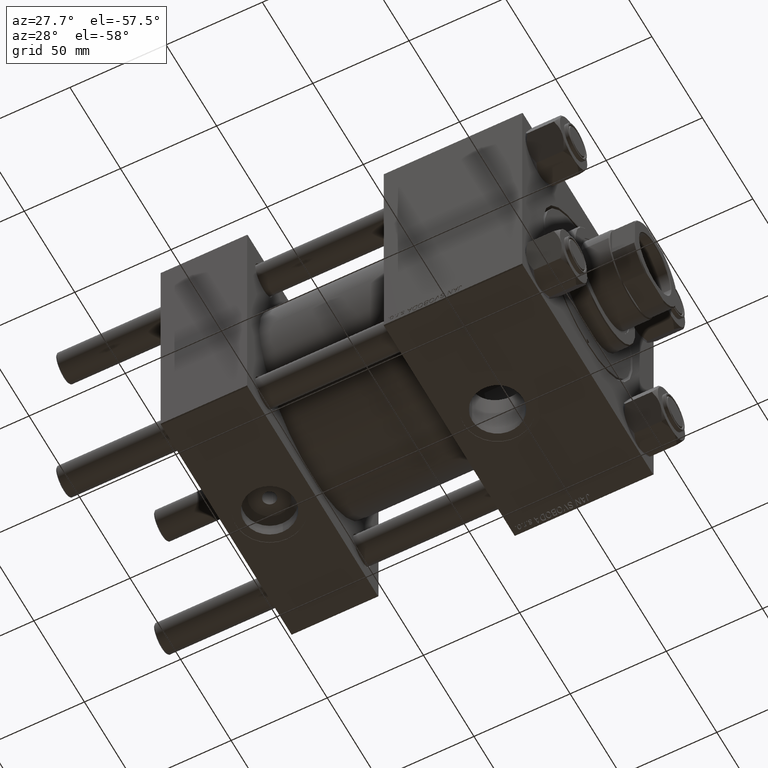
[diagram: clean part render]
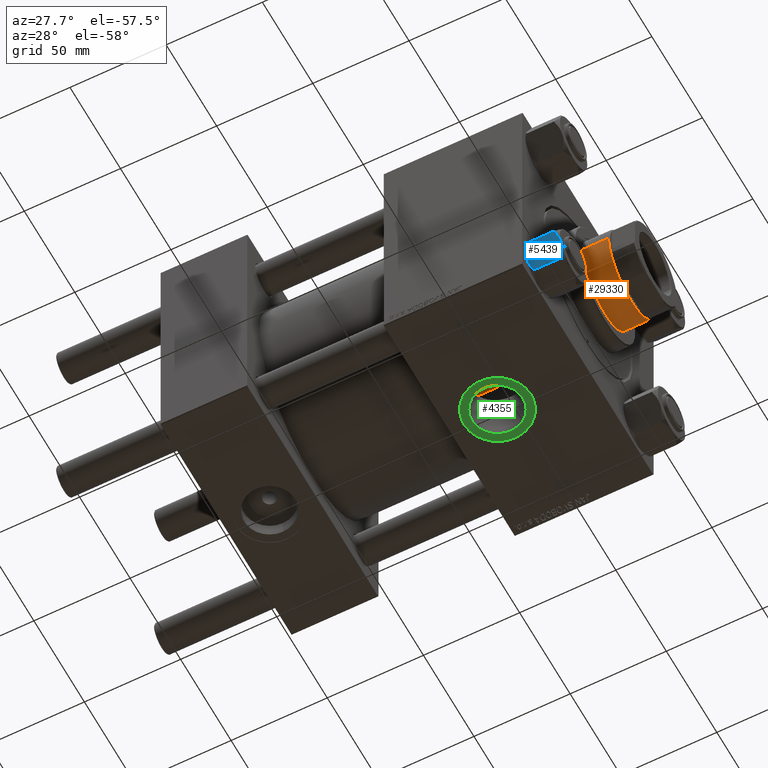
[diagram: same view with three faces highlighted in distinct colors, each labeled with its STEP entity id]
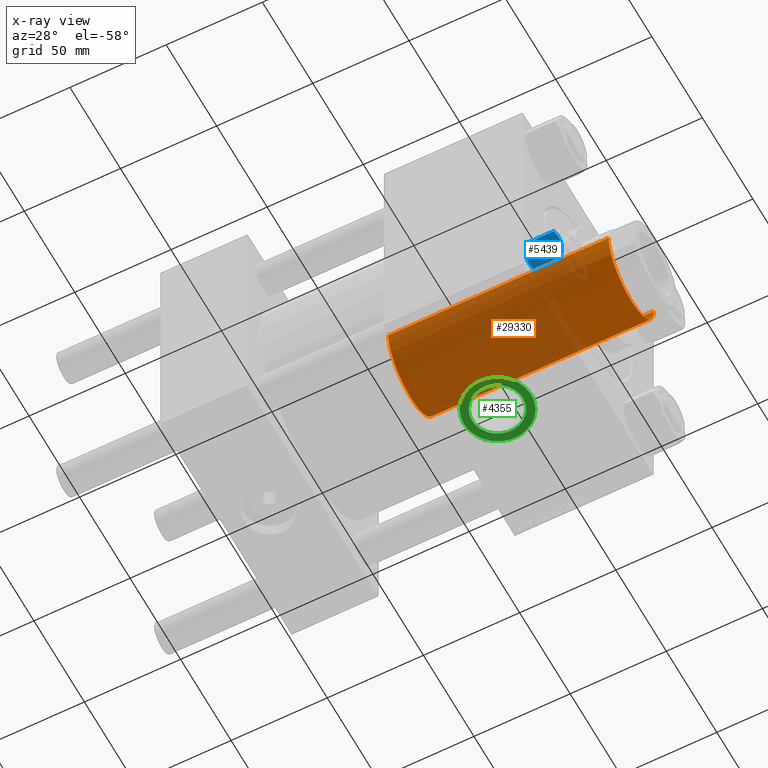
[diagram: x-ray of the same camera — body ghosted, the three highlighted faces saturated]
A machine part, auxiliary view with three faces highlighted in distinct colors.
The next image is the same camera in x-ray (body ghosted, the three faces saturated) — at least one of them is partly hidden behind the body in this view.
Their STEP definitions:

[orange] entity #29330 — the highlighted cylindrical surface (partial cylindrical patch) has radius 22.5 mm, axis along (-1, 0, 0).
#1768 = ORIENTED_EDGE ( 'NONE', *, *, #6244, .T. ) ;
#2637 = ORIENTED_EDGE ( 'NONE', *, *, #27018, .F. ) ;
#2830 = AXIS2_PLACEMENT_3D ( 'NONE', #15520, #30587, #22915 ) ;
#4020 = DIRECTION ( 'NONE',  ( -0.000000000000000000, -0.000000000000000000, -1.000000000000000000 ) ) ;
#5963 = DIRECTION ( 'NONE',  ( 1.000000000000000000, 0.000000000000000000, 0.000000000000000000 ) ) ;
#6213 = DIRECTION ( 'NONE',  ( 0.000000000000000000, 0.000000000000000000, -1.000000000000000000 ) ) ;
#6244 = EDGE_CURVE ( 'NONE', #12100, #17182, #39338, .T. ) ;
#6733 = AXIS2_PLACEMENT_3D ( 'NONE', #49590, #6213, #5963 ) ;
#12100 = VERTEX_POINT ( 'NONE', #40059 ) ;
#12395 = EDGE_CURVE ( 'NONE', #17182, #36912, #35675, .T. ) ;
#13320 = LINE ( 'NONE', #20963, #45439 ) ;
#13419 = CIRCLE ( 'NONE', #2830, 22.50000000000000355 ) ;
#15480 = CYLINDRICAL_SURFACE ( 'NONE', #23498, 22.50000000000000355 ) ;
#15520 = CARTESIAN_POINT ( 'NONE',  ( 0.000000000000000000, 0.000000000000000000, 51.00000000000000000 ) ) ;
#16280 = DIRECTION ( 'NONE',  ( -0.000000000000000000, -0.000000000000000000, -1.000000000000000000 ) ) ;
#17182 = VERTEX_POINT ( 'NONE', #38653 ) ;
#19000 = VECTOR ( 'NONE', #16280, 1000.000000000000000 ) ;
#20963 = CARTESIAN_POINT ( 'NONE',  ( -22.50000000000000355, 0.000000000000000000, 166.0000000000000000 ) ) ;
#21276 = ORIENTED_EDGE ( 'NONE', *, *, #44335, .T. ) ;
#22069 = ORIENTED_EDGE ( 'NONE', *, *, #12395, .T. ) ;
#22915 = DIRECTION ( 'NONE',  ( 1.000000000000000000, 0.000000000000000000, 0.000000000000000000 ) ) ;
#23123 = CARTESIAN_POINT ( 'NONE',  ( 0.000000000000000000, 0.000000000000000000, 166.0000000000000000 ) ) ;
#23498 = AXIS2_PLACEMENT_3D ( 'NONE', #23123, #4020, #37948 ) ;
#23913 = CARTESIAN_POINT ( 'NONE',  ( 22.50000000000000355, 2.755455298081545172E-15, 166.0000000000000000 ) ) ;
#27018 = EDGE_CURVE ( 'NONE', #12100, #31819, #13320, .T. ) ;
#29330 = ADVANCED_FACE ( 'NONE', ( #35122 ), #15480, .T. ) ;
#30587 = DIRECTION ( 'NONE',  ( 0.000000000000000000, 0.000000000000000000, 1.000000000000000000 ) ) ;
#31388 = EDGE_LOOP ( 'NONE', ( #1768, #22069, #21276, #2637 ) ) ;
#31819 = VERTEX_POINT ( 'NONE', #46110 ) ;
#35122 = FACE_OUTER_BOUND ( 'NONE', #31388, .T. ) ;
#35675 = LINE ( 'NONE', #23913, #19000 ) ;
#36912 = VERTEX_POINT ( 'NONE', #39432 ) ;
#37948 = DIRECTION ( 'NONE',  ( -1.000000000000000000, 0.000000000000000000, 0.000000000000000000 ) ) ;
#38653 = CARTESIAN_POINT ( 'NONE',  ( 22.50000000000000355, 2.755455298081545172E-15, 165.4999999999999716 ) ) ;
#39338 = CIRCLE ( 'NONE', #6733, 22.50000000000000355 ) ;
#39432 = CARTESIAN_POINT ( 'NONE',  ( 22.50000000000000355, 2.755455298081545172E-15, 51.00000000000000000 ) ) ;
#40059 = CARTESIAN_POINT ( 'NONE',  ( -22.50000000000000355, 0.000000000000000000, 165.4999999999999716 ) ) ;
#44335 = EDGE_CURVE ( 'NONE', #36912, #31819, #13419, .T. ) ;
#44702 = DIRECTION ( 'NONE',  ( -0.000000000000000000, -0.000000000000000000, -1.000000000000000000 ) ) ;
#45439 = VECTOR ( 'NONE', #44702, 1000.000000000000000 ) ;
#46110 = CARTESIAN_POINT ( 'NONE',  ( -22.50000000000000355, 0.000000000000000000, 51.00000000000000000 ) ) ;
#49590 = CARTESIAN_POINT ( 'NONE',  ( 0.000000000000000000, 0.000000000000000000, 165.4999999999999716 ) ) ;

[blue] entity #5439 — the highlighted planar face has unit normal (-0, 0.9104, 0.4137).
#192 = EDGE_CURVE ( 'NONE', #7219, #49296, #11376, .T. ) ;
#323 = CARTESIAN_POINT ( 'NONE',  ( 6.422751913021809145, 13.52731680711294260, -16.56349088907410660 ) ) ;
#573 = CARTESIAN_POINT ( 'NONE',  ( 4.557734399832405359, 13.52731680711293905, -17.26585298258848411 ) ) ;
#710 = CARTESIAN_POINT ( 'NONE',  ( 6.427364677720460051, 13.52731680711294082, -1.438506937155139553 ) ) ;
#825 = CARTESIAN_POINT ( 'NONE',  ( 2.644243758052981175, 13.52731680711294260, -17.75917188019758797 ) ) ;
#901 = DIRECTION ( 'NONE',  ( 1.000000000000000000, 3.331735229148797044E-16, 0.000000000000000000 ) ) ;
#1019 = CARTESIAN_POINT ( 'NONE',  ( -7.810000000000002274, 13.52731680711293549, -18.00000000000000000 ) ) ;
#1217 = CARTESIAN_POINT ( 'NONE',  ( 5.189513245496318206, 13.52731680711294260, -0.9501108431732598891 ) ) ;
#1478 = CARTESIAN_POINT ( 'NONE',  ( -7.622943475354639453, 13.52731680711293727, -16.00000000000000000 ) ) ;
#2413 = CARTESIAN_POINT ( 'NONE',  ( 7.030888348548049116, 13.52731680711294260, -1.709337883550296810 ) ) ;
#3431 = VERTEX_POINT ( 'NONE', #46425 ) ;
#3730 = CARTESIAN_POINT ( 'NONE',  ( -7.810000000000002274, 13.52731680711293549, -16.00000000000000000 ) ) ;
#4836 = CARTESIAN_POINT ( 'NONE',  ( -7.030203932307578896, 13.52731680711293727, -1.709001877891394239 ) ) ;
#4906 = CARTESIAN_POINT ( 'NONE',  ( 7.030203932307570902, 13.52731680711294260, -16.29099812210859710 ) ) ;
#5163 = ORIENTED_EDGE ( 'NONE', *, *, #23436, .F. ) ;
#5208 = EDGE_CURVE ( 'NONE', #30845, #33318, #41017, .T. ) ;
#5439 = ADVANCED_FACE ( 'NONE', ( #35968 ), #24205, .F. ) ;
#5758 = EDGE_LOOP ( 'NONE', ( #9106, #6622, #39310, #26204, #11790, #5163, #50349, #13060, #20486, #32693 ) ) ;
#5974 = EDGE_CURVE ( 'NONE', #7219, #39109, #17501, .T. ) ;
#6344 = VECTOR ( 'NONE', #901, 1000.000000000000000 ) ;
#6622 = ORIENTED_EDGE ( 'NONE', *, *, #5974, .T. ) ;
#6748 = EDGE_CURVE ( 'NONE', #45486, #46559, #14746, .T. ) ;
#7219 = VERTEX_POINT ( 'NONE', #20265 ) ;
#7681 = EDGE_CURVE ( 'NONE', #20023, #39109, #20206, .T. ) ;
#9106 = ORIENTED_EDGE ( 'NONE', *, *, #192, .F. ) ;
#9222 = VECTOR ( 'NONE', #40370, 1000.000000000000000 ) ;
#9665 = CARTESIAN_POINT ( 'NONE',  ( -1.663410456966178064, 13.52731680711294082, -0.09804949135699474183 ) ) ;
#9911 = CARTESIAN_POINT ( 'NONE',  ( -3.287826776903154613, 13.52731680711293549, -0.3804584453753406814 ) ) ;
#11203 = DIRECTION ( 'NONE',  ( 1.000000000000000000, 3.331735229148797044E-16, 0.000000000000000000 ) ) ;
#11285 = CARTESIAN_POINT ( 'NONE',  ( 7.809999999999994280, 13.52731680711294082, -1.999999999999998224 ) ) ;
#11376 = LINE ( 'NONE', #3730, #6344 ) ;
#11790 = ORIENTED_EDGE ( 'NONE', *, *, #48332, .F. ) ;
#12731 = CARTESIAN_POINT ( 'NONE',  ( -1.333889873825136130, 13.52731680711293549, -0.06156641003439738274 ) ) ;
#13060 = ORIENTED_EDGE ( 'NONE', *, *, #44330, .F. ) ;
#13181 = CARTESIAN_POINT ( 'NONE',  ( -7.810000000000002274, 13.52731680711293549, -18.00000000000000000 ) ) ;
#14210 = VECTOR ( 'NONE', #11203, 1000.000000000000000 ) ;
#14746 = LINE ( 'NONE', #46384, #27924 ) ;
#16262 = CARTESIAN_POINT ( 'NONE',  ( 7.622943475354630571, 13.52731680711294082, -2.000000000000000000 ) ) ;
#16688 = VERTEX_POINT ( 'NONE', #29904 ) ;
#17301 = CARTESIAN_POINT ( 'NONE',  ( -4.557734399832410688, 13.52731680711293549, -0.7341470174115168890 ) ) ;
#17501 = LINE ( 'NONE', #13181, #24641 ) ;
#18708 = LINE ( 'NONE', #19460, #27519 ) ;
#19219 = CARTESIAN_POINT ( 'NONE',  ( -1.335584685993417065, 13.52731680711293549, -17.99999999999999289 ) ) ;
#19460 = CARTESIAN_POINT ( 'NONE',  ( -7.810000000000002274, 13.52731680711293549, -1.999999999999998224 ) ) ;
#19625 = B_SPLINE_CURVE_WITH_KNOTS ( 'NONE', 3,
 ( #20626, #47699, #44865, #12731, #9665, #36705, #9911, #17301, #20877, #24697, #4836, #44112 ),
 .UNSPECIFIED., .F., .F.,
 ( 4, 2, 2, 2, 2, 4 ),
 ( 0.02774433486126545376, 0.02873404020403548878, 0.02972374554680552727, 0.03170315623234559732, 0.03368256691788567431, 0.03566197760342574435 ),
 .UNSPECIFIED. ) ;
#19710 = CARTESIAN_POINT ( 'NONE',  ( -7.622943475354639453, 13.52731680711293727, -16.00000000000000000 ) ) ;
#20023 = VERTEX_POINT ( 'NONE', #44337 ) ;
#20197 = CARTESIAN_POINT ( 'NONE',  ( 0.3330234424833778406, 13.52731680711293905, -17.99999999999999645 ) ) ;
#20206 = LINE ( 'NONE', #24781, #9222 ) ;
#20265 = CARTESIAN_POINT ( 'NONE',  ( -7.810000000000002274, 13.52731680711293549, -16.00000000000000000 ) ) ;
#20486 = ORIENTED_EDGE ( 'NONE', *, *, #5208, .F. ) ;
#20626 = CARTESIAN_POINT ( 'NONE',  ( -4.506943796211480446E-15, 13.52731680711293905, 0.000000000000000000 ) ) ;
#20877 = CARTESIAN_POINT ( 'NONE',  ( -5.184073258379398474, 13.52731680711293372, -0.9481437906500842505 ) ) ;
#23436 = EDGE_CURVE ( 'NONE', #46559, #16688, #18708, .T. ) ;
#23519 = CARTESIAN_POINT ( 'NONE',  ( 7.622943475354630571, 13.52731680711294082, -16.00000000000000000 ) ) ;
#24190 = EDGE_CURVE ( 'NONE', #49296, #30845, #45196, .T. ) ;
#24205 = PLANE ( 'NONE',  #34050 ) ;
#24641 = VECTOR ( 'NONE', #40975, 1000.000000000000000 ) ;
#24697 = CARTESIAN_POINT ( 'NONE',  ( -6.422751913021819803, 13.52731680711293905, -1.436509110925896504 ) ) ;
#24781 = CARTESIAN_POINT ( 'NONE',  ( -7.810000000000002274, 13.52731680711293549, -1.999999999999998224 ) ) ;
#26204 = ORIENTED_EDGE ( 'NONE', *, *, #32521, .F. ) ;
#26874 = CARTESIAN_POINT ( 'NONE',  ( -4.553769687922305742, 13.52731680711293727, -17.26727080048547691 ) ) ;
#27519 = VECTOR ( 'NONE', #34277, 1000.000000000000000 ) ;
#27801 = CARTESIAN_POINT ( 'NONE',  ( -7.810000000000002274, 13.52731680711293549, -1.999999999999998224 ) ) ;
#27924 = VECTOR ( 'NONE', #30302, 1000.000000000000000 ) ;
#28042 = DIRECTION ( 'NONE',  ( 1.000000000000000000, 3.331735229148797044E-16, 0.000000000000000000 ) ) ;
#28358 = CARTESIAN_POINT ( 'NONE',  ( -4.506943796211480446E-15, 13.52731680711293905, -18.00000000000000000 ) ) ;
#29904 = CARTESIAN_POINT ( 'NONE',  ( 7.622943475354630571, 13.52731680711294082, -2.000000000000000000 ) ) ;
#30302 = DIRECTION ( 'NONE',  ( -0.000000000000000000, -0.000000000000000000, 1.000000000000000000 ) ) ;
#30684 = CARTESIAN_POINT ( 'NONE',  ( 7.622943475354630571, 13.52731680711294082, -16.00000000000000000 ) ) ;
#30845 = VERTEX_POINT ( 'NONE', #42335 ) ;
#31833 = CARTESIAN_POINT ( 'NONE',  ( 4.553769687922292420, 13.52731680711293905, -0.7327291995145180925 ) ) ;
#31946 = CARTESIAN_POINT ( 'NONE',  ( 0.6693083573771140271, 13.52731680711293905, -17.98750666918891739 ) ) ;
#32521 = EDGE_CURVE ( 'NONE', #3431, #20023, #19625, .T. ) ;
#32693 = ORIENTED_EDGE ( 'NONE', *, *, #24190, .F. ) ;
#33318 = VERTEX_POINT ( 'NONE', #30684 ) ;
#33510 = CARTESIAN_POINT ( 'NONE',  ( -4.506943796211480446E-15, 13.52731680711293905, 0.000000000000000000 ) ) ;
#34050 = AXIS2_PLACEMENT_3D ( 'NONE', #1019, #46696, #28042 ) ;
#34277 = DIRECTION ( 'NONE',  ( -1.000000000000000000, -3.331735229148797044E-16, 0.000000000000000000 ) ) ;
#35261 = CARTESIAN_POINT ( 'NONE',  ( 5.184073258379390481, 13.52731680711294082, -17.05185620934991064 ) ) ;
#35968 = FACE_OUTER_BOUND ( 'NONE', #5758, .T. ) ;
#36705 = CARTESIAN_POINT ( 'NONE',  ( -2.644243758052992721, 13.52731680711293549, -0.2408281198024026237 ) ) ;
#38496 = CARTESIAN_POINT ( 'NONE',  ( -7.810000000000002274, 13.52731680711293549, -16.00000000000000000 ) ) ;
#38883 = CARTESIAN_POINT ( 'NONE',  ( -5.189513245496327976, 13.52731680711293905, -17.04988915682674389 ) ) ;
#39109 = VERTEX_POINT ( 'NONE', #27801 ) ;
#39310 = ORIENTED_EDGE ( 'NONE', *, *, #7681, .F. ) ;
#39598 = CARTESIAN_POINT ( 'NONE',  ( 3.287826776903146619, 13.52731680711294082, -17.61954155462465366 ) ) ;
#40240 = CARTESIAN_POINT ( 'NONE',  ( 1.335584685993407517, 13.52731680711293905, -4.214835945537398487E-15 ) ) ;
#40370 = DIRECTION ( 'NONE',  ( -1.000000000000000000, -3.331735229148797044E-16, 0.000000000000000000 ) ) ;
#40975 = DIRECTION ( 'NONE',  ( -0.000000000000000000, -0.000000000000000000, 1.000000000000000000 ) ) ;
#41017 = B_SPLINE_CURVE_WITH_KNOTS ( 'NONE', 3,
 ( #28358, #20197, #31946, #46756, #43171, #825, #39598, #573, #35261, #323, #4906, #23519 ),
 .UNSPECIFIED., .F., .F.,
 ( 4, 2, 2, 2, 2, 4 ),
 ( 0.02774433486126545029, 0.02873404020403548531, 0.02972374554680552380, 0.03170315623234559732, 0.03368256691788566737, 0.03566197760342574435 ),
 .UNSPECIFIED. ) ;
#41750 = B_SPLINE_CURVE_WITH_KNOTS ( 'NONE', 3,
 ( #16262, #2413, #710, #1217, #31833, #47656, #40240, #33510 ),
 .UNSPECIFIED., .F., .F.,
 ( 4, 2, 2, 4 ),
 ( 0.01980594295952729789, 0.02179054093496183772, 0.02377513891039637756, 0.02774433486126545376 ),
 .UNSPECIFIED. ) ;
#42321 = LINE ( 'NONE', #38496, #14210 ) ;
#42335 = CARTESIAN_POINT ( 'NONE',  ( -4.506943796211480446E-15, 13.52731680711293905, -18.00000000000000000 ) ) ;
#42589 = CARTESIAN_POINT ( 'NONE',  ( 7.809999999999994280, 13.52731680711294082, -16.00000000000000000 ) ) ;
#42696 = CARTESIAN_POINT ( 'NONE',  ( -4.506943796211480446E-15, 13.52731680711293905, -18.00000000000000000 ) ) ;
#42950 = CARTESIAN_POINT ( 'NONE',  ( -2.638177715023108494, 13.52731680711293549, -17.79984593233010770 ) ) ;
#43171 = CARTESIAN_POINT ( 'NONE',  ( 1.663410456966166295, 13.52731680711293905, -17.90195050864300086 ) ) ;
#44112 = CARTESIAN_POINT ( 'NONE',  ( -7.622943475354639453, 13.52731680711293727, -2.000000000000000000 ) ) ;
#44330 = EDGE_CURVE ( 'NONE', #33318, #45486, #42321, .T. ) ;
#44337 = CARTESIAN_POINT ( 'NONE',  ( -7.622943475354639453, 13.52731680711293727, -2.000000000000000000 ) ) ;
#44865 = CARTESIAN_POINT ( 'NONE',  ( -0.6693083573771245742, 13.52731680711293727, -0.01249333081108506931 ) ) ;
#45196 = B_SPLINE_CURVE_WITH_KNOTS ( 'NONE', 3,
 ( #19710, #49868, #49615, #38883, #26874, #42950, #19219, #42696 ),
 .UNSPECIFIED., .F., .F.,
 ( 4, 2, 2, 4 ),
 ( 0.01980594295952729442, 0.02179054093496183425, 0.02377513891039637409, 0.02774433486126545029 ),
 .UNSPECIFIED. ) ;
#45486 = VERTEX_POINT ( 'NONE', #42589 ) ;
#46384 = CARTESIAN_POINT ( 'NONE',  ( 7.809999999999995168, 13.52731680711294082, -18.00000000000000000 ) ) ;
#46425 = CARTESIAN_POINT ( 'NONE',  ( -4.506943796211480446E-15, 13.52731680711293905, 0.000000000000000000 ) ) ;
#46559 = VERTEX_POINT ( 'NONE', #11285 ) ;
#46696 = DIRECTION ( 'NONE',  ( 3.331735229148797044E-16, -1.000000000000000000, 0.000000000000000000 ) ) ;
#46756 = CARTESIAN_POINT ( 'NONE',  ( 1.333889873825125472, 13.52731680711293727, -17.93843358996559800 ) ) ;
#47656 = CARTESIAN_POINT ( 'NONE',  ( 2.638177715023098724, 13.52731680711293905, -0.2001540676698886079 ) ) ;
#47699 = CARTESIAN_POINT ( 'NONE',  ( -0.3330234424833884432, 13.52731680711294082, -4.372948762358202269E-15 ) ) ;
#48332 = EDGE_CURVE ( 'NONE', #16688, #3431, #41750, .T. ) ;
#49296 = VERTEX_POINT ( 'NONE', #1478 ) ;
#49615 = CARTESIAN_POINT ( 'NONE',  ( -6.427364677720469821, 13.52731680711293549, -16.56149306284486400 ) ) ;
#49868 = CARTESIAN_POINT ( 'NONE',  ( -7.030888348548057998, 13.52731680711293727, -16.29066211644969897 ) ) ;
#50349 = ORIENTED_EDGE ( 'NONE', *, *, #6748, .F. ) ;

[green] entity #4355 — the highlighted planar face has unit normal (0, 0, -1).
#1326 = PLANE ( 'NONE',  #40014 ) ;
#1579 = FACE_OUTER_BOUND ( 'NONE', #26764, .T. ) ;
#2127 = VERTEX_POINT ( 'NONE', #10829 ) ;
#2517 = EDGE_CURVE ( 'NONE', #19670, #2127, #42253, .T. ) ;
#2590 = DIRECTION ( 'NONE',  ( 0.000000000000000000, 0.000000000000000000, -1.000000000000000000 ) ) ;
#4293 = DIRECTION ( 'NONE',  ( -1.000000000000000000, 0.000000000000000000, 0.000000000000000000 ) ) ;
#4355 = ADVANCED_FACE ( 'NONE', ( #10660, #1579 ), #1326, .T. ) ;
#4558 = ORIENTED_EDGE ( 'NONE', *, *, #36143, .F. ) ;
#5645 = ORIENTED_EDGE ( 'NONE', *, *, #2517, .T. ) ;
#5649 = DIRECTION ( 'NONE',  ( 0.000000000000000000, 0.000000000000000000, -1.000000000000000000 ) ) ;
#6607 = CIRCLE ( 'NONE', #9057, 13.22000000000000952 ) ;
#9057 = AXIS2_PLACEMENT_3D ( 'NONE', #27635, #18974, #11337 ) ;
#10660 = FACE_BOUND ( 'NONE', #23252, .T. ) ;
#10829 = CARTESIAN_POINT ( 'NONE',  ( 158.5000000000000000, 1.602091970632232500E-14, -64.79999999999999716 ) ) ;
#11337 = DIRECTION ( 'NONE',  ( -1.000000000000000000, 0.000000000000000000, 0.000000000000000000 ) ) ;
#15778 = VERTEX_POINT ( 'NONE', #46170 ) ;
#16873 = DIRECTION ( 'NONE',  ( -1.000000000000000000, 0.000000000000000000, -0.000000000000000000 ) ) ;
#17350 = DIRECTION ( 'NONE',  ( 0.000000000000000000, 0.000000000000000000, -1.000000000000000000 ) ) ;
#18974 = DIRECTION ( 'NONE',  ( 0.000000000000000000, 0.000000000000000000, -1.000000000000000000 ) ) ;
#19157 = CIRCLE ( 'NONE', #40374, 13.22000000000000952 ) ;
#19333 = CARTESIAN_POINT ( 'NONE',  ( 141.0000000000000000, 1.387778780781445676E-14, -64.79999999999999716 ) ) ;
#19439 = AXIS2_PLACEMENT_3D ( 'NONE', #44156, #17350, #44416 ) ;
#19670 = VERTEX_POINT ( 'NONE', #22207 ) ;
#20088 = CIRCLE ( 'NONE', #26599, 17.50000000000001421 ) ;
#21652 = CARTESIAN_POINT ( 'NONE',  ( 127.7799999999999727, 1.387778780781445676E-14, -64.79999999999999716 ) ) ;
#22207 = CARTESIAN_POINT ( 'NONE',  ( 123.4999999999999716, 1.387778780781445676E-14, -64.79999999999999716 ) ) ;
#22925 = EDGE_CURVE ( 'NONE', #2127, #19670, #20088, .T. ) ;
#23252 = EDGE_LOOP ( 'NONE', ( #34510, #4558 ) ) ;
#26599 = AXIS2_PLACEMENT_3D ( 'NONE', #19333, #34905, #4293 ) ;
#26764 = EDGE_LOOP ( 'NONE', ( #5645, #35149 ) ) ;
#27635 = CARTESIAN_POINT ( 'NONE',  ( 141.0000000000000000, 1.387778780781445676E-14, -64.79999999999999716 ) ) ;
#33934 = VERTEX_POINT ( 'NONE', #21652 ) ;
#34510 = ORIENTED_EDGE ( 'NONE', *, *, #50428, .F. ) ;
#34905 = DIRECTION ( 'NONE',  ( 0.000000000000000000, 0.000000000000000000, -1.000000000000000000 ) ) ;
#35149 = ORIENTED_EDGE ( 'NONE', *, *, #22925, .T. ) ;
#36143 = EDGE_CURVE ( 'NONE', #15778, #33934, #6607, .T. ) ;
#40014 = AXIS2_PLACEMENT_3D ( 'NONE', #44175, #5649, #16873 ) ;
#40374 = AXIS2_PLACEMENT_3D ( 'NONE', #49017, #2590, #40853 ) ;
#40853 = DIRECTION ( 'NONE',  ( -1.000000000000000000, 0.000000000000000000, 0.000000000000000000 ) ) ;
#42253 = CIRCLE ( 'NONE', #19439, 17.50000000000001421 ) ;
#44156 = CARTESIAN_POINT ( 'NONE',  ( 141.0000000000000000, 1.387778780781445676E-14, -64.79999999999999716 ) ) ;
#44175 = CARTESIAN_POINT ( 'NONE',  ( 141.0000000000000000, 1.387778780781445676E-14, -64.79999999999999716 ) ) ;
#44416 = DIRECTION ( 'NONE',  ( -1.000000000000000000, 0.000000000000000000, 0.000000000000000000 ) ) ;
#46170 = CARTESIAN_POINT ( 'NONE',  ( 154.2199999999999989, 1.549677087628726185E-14, -64.79999999999999716 ) ) ;
#49017 = CARTESIAN_POINT ( 'NONE',  ( 141.0000000000000000, 1.387778780781445676E-14, -64.79999999999999716 ) ) ;
#50428 = EDGE_CURVE ( 'NONE', #33934, #15778, #19157, .T. ) ;